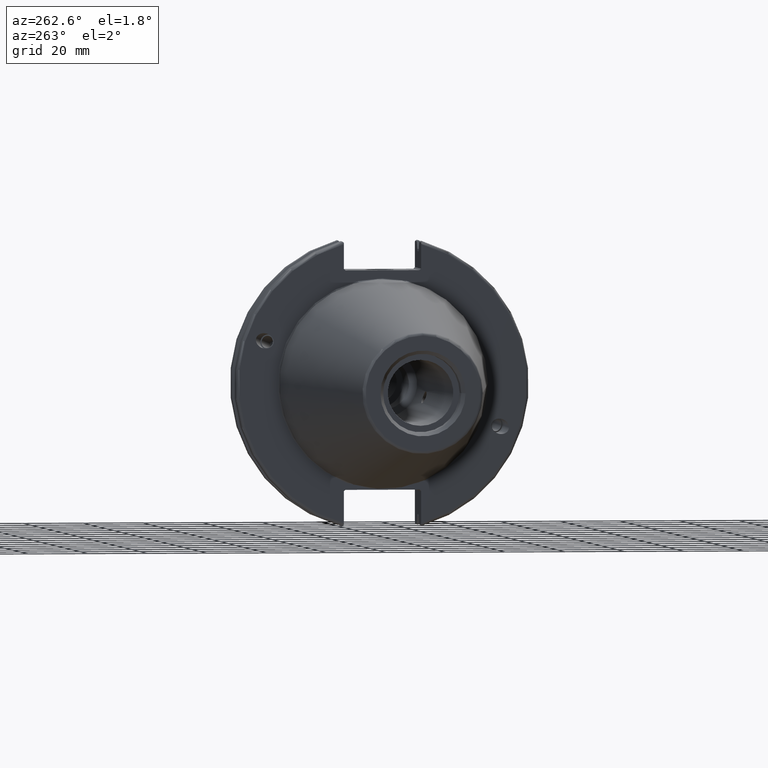
[diagram: clean part render]
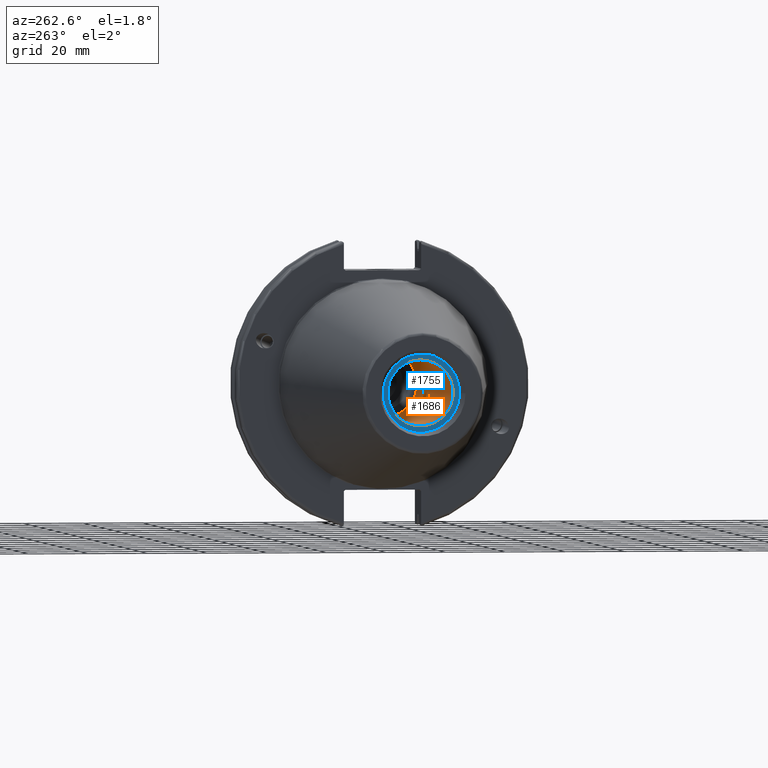
[diagram: same view with the hole feature highlighted: cylindrical wall and planar end face, labeled with their STEP entity ids]
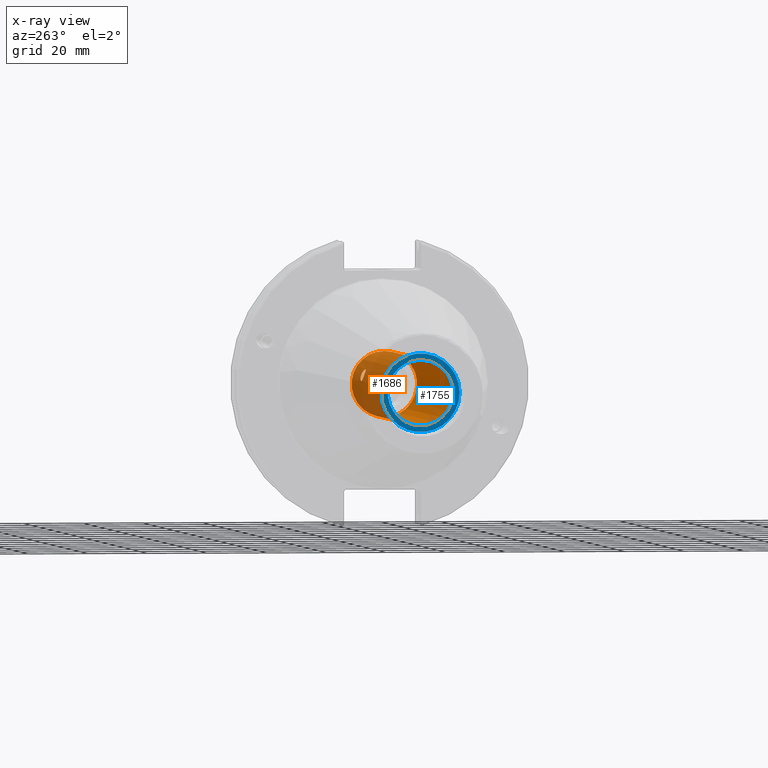
[diagram: x-ray of the same camera — body ghosted, the hole faces saturated]
A machine part, auxiliary view. The highlighted faces form one hole feature of diameter 21.971 mm: the cylindrical wall (entity #1686, orange) and its adjacent planar end face (entity #1755, blue) — they share a circular edge in the B-rep.
The next image is the same camera in x-ray (body ghosted, the hole faces saturated) — the bore reads through the body.
Wall:
#31=B_SPLINE_CURVE_WITH_KNOTS('',3,(#2753,#2754,#2755,#2756,#2757,#2758,
#2759,#2760,#2761,#2762,#2763,#2764,#2765,#2766,#2767,#2768,#2769,#2770,
#2771,#2772,#2773,#2774),.UNSPECIFIED.,.F.,.F.,(4,2,2,2,2,2,2,2,2,2,4),
(0.,0.263356262559381,0.379400792463201,0.415511189994392,0.451621587525582,
0.487731985056773,0.523842382587963,0.639886912491784,0.903243175051165,
1.03515170477571,1.03931269301749),.UNSPECIFIED.);
#32=B_SPLINE_CURVE_WITH_KNOTS('',3,(#2775,#2776,#2777,#2778,#2779,#2780,
#2781,#2782,#2783,#2784,#2785,#2786,#2787,#2788,#2789,#2790),
 .UNSPECIFIED.,.F.,.F.,(4,2,2,2,2,2,2,4),(1.03931269301749,1.16706023450025,
1.24262540104365,1.31819056758706,1.39375573413046,1.46932090067387,1.60122943039841,
1.73313796012295),.UNSPECIFIED.);
#33=B_SPLINE_CURVE_WITH_KNOTS('',3,(#2793,#2794,#2795,#2796,#2797,#2798,
#2799,#2800,#2801,#2802,#2803,#2804,#2805,#2806,#2807,#2808,#2809,#2810,
#2811,#2812,#2813,#2814,#2815,#2816,#2817,#2818),.UNSPECIFIED.,.F.,.F.,
(4,2,2,2,2,2,2,2,2,2,2,2,4),(0.,0.149948388349609,0.299896776699218,0.379142260611342,
0.418765002567404,0.458387744523466,0.498010486479528,0.53763322843559,
0.616878712347714,0.766827100697323,0.916775489046932,1.03646232228008,
1.05214614628718),.UNSPECIFIED.);
#34=B_SPLINE_CURVE_WITH_KNOTS('',3,(#2819,#2820,#2821,#2822,#2823,#2824,
#2825,#2826,#2827,#2828,#2829,#2830,#2831,#2832,#2833,#2834,#2835,#2836),
 .UNSPECIFIED.,.F.,.F.,(4,2,2,2,2,2,2,2,4),(1.05214614628718,1.15614915551322,
1.24410107663138,1.28807703719046,1.33205299774954,1.40761816429294,1.48318333083635,
1.61509186056089,1.74700039028543),.UNSPECIFIED.);
#110=FACE_BOUND('',#296,.T.);
#111=FACE_BOUND('',#297,.T.);
#189=FACE_OUTER_BOUND('',#295,.T.);
#295=EDGE_LOOP('',(#1269,#1270,#1271,#1272));
#296=EDGE_LOOP('',(#1273,#1274));
#297=EDGE_LOOP('',(#1275,#1276));
#404=LINE('',#2750,#498);
#498=VECTOR('',#2229,10.9855);
#629=CIRCLE('',#1873,10.9855);
#630=CIRCLE('',#1875,10.9855);
#739=VERTEX_POINT('',#2744);
#740=VERTEX_POINT('',#2748);
#741=VERTEX_POINT('',#2751);
#742=VERTEX_POINT('',#2752);
#743=VERTEX_POINT('',#2791);
#744=VERTEX_POINT('',#2792);
#935=EDGE_CURVE('',#739,#739,#629,.T.);
#937=EDGE_CURVE('',#740,#740,#630,.T.);
#938=EDGE_CURVE('',#740,#739,#404,.T.);
#939=EDGE_CURVE('',#741,#742,#31,.T.);
#940=EDGE_CURVE('',#742,#741,#32,.T.);
#941=EDGE_CURVE('',#743,#744,#33,.T.);
#942=EDGE_CURVE('',#744,#743,#34,.T.);
#1269=ORIENTED_EDGE('',*,*,#937,.F.);
#1270=ORIENTED_EDGE('',*,*,#938,.T.);
#1271=ORIENTED_EDGE('',*,*,#935,.F.);
#1272=ORIENTED_EDGE('',*,*,#938,.F.);
#1273=ORIENTED_EDGE('',*,*,#939,.F.);
#1274=ORIENTED_EDGE('',*,*,#940,.F.);
#1275=ORIENTED_EDGE('',*,*,#941,.F.);
#1276=ORIENTED_EDGE('',*,*,#942,.F.);
#1633=CYLINDRICAL_SURFACE('',#1874,10.9855);
#1686=ADVANCED_FACE('',(#189,#110,#111),#1633,.F.);
#1873=AXIS2_PLACEMENT_3D('',#2745,#2222,#2223);
#1874=AXIS2_PLACEMENT_3D('',#2747,#2225,#2226);
#1875=AXIS2_PLACEMENT_3D('',#2749,#2227,#2228);
#2222=DIRECTION('center_axis',(-1.,0.,0.));
#2223=DIRECTION('ref_axis',(0.,0.,1.));
#2225=DIRECTION('center_axis',(-1.,0.,0.));
#2226=DIRECTION('ref_axis',(0.,0.,1.));
#2227=DIRECTION('center_axis',(1.,0.,0.));
#2228=DIRECTION('ref_axis',(0.,0.,1.));
#2229=DIRECTION('',(1.,0.,0.));
#2744=CARTESIAN_POINT('',(-1.6,-1.34533574120333E-15,-10.9855));
#2745=CARTESIAN_POINT('Origin',(-1.6,0.,0.));
#2747=CARTESIAN_POINT('Origin',(-51.6,0.,0.));
#2748=CARTESIAN_POINT('',(-95.25,1.34533574120333E-15,-10.9855));
#2749=CARTESIAN_POINT('Origin',(-95.25,0.,0.));
#2750=CARTESIAN_POINT('',(-51.6,-1.34533574120333E-15,-10.9855));
#2751=CARTESIAN_POINT('',(-25.5235170780255,-10.8455693307922,-1.74780895437107));
#2752=CARTESIAN_POINT('',(-26.9402421845153,-9.52319068260596,-5.47631714500936));
#2753=CARTESIAN_POINT('Ctrl Pts',(-25.5235170780255,-10.8455693307922,-1.74780895437107));
#2754=CARTESIAN_POINT('Ctrl Pts',(-24.6456628694942,-10.8455693307922,-1.74780895437107));
#2755=CARTESIAN_POINT('Ctrl Pts',(-23.6129759087193,-10.8179461434476,-1.95396165756499));
#2756=CARTESIAN_POINT('Ctrl Pts',(-22.4915777455551,-10.6928496109914,-2.5251056642302));
#2757=CARTESIAN_POINT('Ctrl Pts',(-22.1135113311296,-10.6306843167928,-2.78714113742084));
#2758=CARTESIAN_POINT('Ctrl Pts',(-21.8167348410648,-10.5150655626391,-3.18184445243805));
#2759=CARTESIAN_POINT('Ctrl Pts',(-21.751306341111,-10.481522737279,-3.29145252394975));
#2760=CARTESIAN_POINT('Ctrl Pts',(-21.6624430214445,-10.4061442836875,-3.52251896272565));
#2761=CARTESIAN_POINT('Ctrl Pts',(-21.6395918285545,-10.3641615634408,-3.64415337085845));
#2762=CARTESIAN_POINT('Ctrl Pts',(-21.6395918285545,-10.2818250078464,-3.87037119814982));
#2763=CARTESIAN_POINT('Ctrl Pts',(-21.6624430214445,-10.2358005469391,-3.99053453298755));
#2764=CARTESIAN_POINT('Ctrl Pts',(-21.751306341111,-10.1450171485842,-4.21599403040906));
#2765=CARTESIAN_POINT('Ctrl Pts',(-21.8167348410648,-10.1002577332685,-4.32151959704693));
#2766=CARTESIAN_POINT('Ctrl Pts',(-22.1135113311296,-9.93511643701296,-4.69819818081389));
#2767=CARTESIAN_POINT('Ctrl Pts',(-22.4915777455551,-9.81430465972338,-4.93888807981503));
#2768=CARTESIAN_POINT('Ctrl Pts',(-23.6129759087192,-9.54300987243374,-5.45682027341917));
#2769=CARTESIAN_POINT('Ctrl Pts',(-24.6456628694942,-9.43165805828388,-5.63249824870001));
#2770=CARTESIAN_POINT('Ctrl Pts',(-25.9632121771073,-9.43165805828388,-5.63249824870001));
#2771=CARTESIAN_POINT('Ctrl Pts',(-26.442594873787,-9.45709886034953,-5.59098046114587));
#2772=CARTESIAN_POINT('Ctrl Pts',(-26.9116304726285,-9.51928731326139,-5.48310074803666));
#2773=CARTESIAN_POINT('Ctrl Pts',(-26.9259493735239,-9.52122233304375,-5.47974006002988));
#2774=CARTESIAN_POINT('Ctrl Pts',(-26.9402421845154,-9.52319068260616,-5.47631714500933));
#2775=CARTESIAN_POINT('Ctrl Pts',(-26.9402421845154,-9.52319068260616,-5.47631714500933));
#2776=CARTESIAN_POINT('Ctrl Pts',(-27.3790493521749,-9.58362147518866,-5.37122937422736));
#2777=CARTESIAN_POINT('Ctrl Pts',(-27.7931087671317,-9.67645097428544,-5.20740068871255));
#2778=CARTESIAN_POINT('Ctrl Pts',(-28.3252856471715,-9.8663789405842,-4.83322872168078));
#2779=CARTESIAN_POINT('Ctrl Pts',(-28.5137854586409,-9.9541751093878,-4.65275835687149));
#2780=CARTESIAN_POINT('Ctrl Pts',(-28.7750183392881,-10.1396107127252,-4.23344512577805));
#2781=CARTESIAN_POINT('Ctrl Pts',(-28.8470008816521,-10.2368439220049,-3.99395571580179));
#2782=CARTESIAN_POINT('Ctrl Pts',(-28.8470008816521,-10.4091426492823,-3.52056885320648));
#2783=CARTESIAN_POINT('Ctrl Pts',(-28.7750183392881,-10.4885985150108,-3.27460901933327));
#2784=CARTESIAN_POINT('Ctrl Pts',(-28.5137854586409,-10.6160759510423,-2.83420074050785));
#2785=CARTESIAN_POINT('Ctrl Pts',(-28.3252856471715,-10.6648242982181,-2.63951813091313));
#2786=CARTESIAN_POINT('Ctrl Pts',(-27.7822172603396,-10.761788810905,-2.2224376752005));
#2787=CARTESIAN_POINT('Ctrl Pts',(-27.3519799757018,-10.7962891973262,-2.03369662215047));
#2788=CARTESIAN_POINT('Ctrl Pts',(-26.442594873787,-10.8383709964217,-1.79596645716579));
#2789=CARTESIAN_POINT('Ctrl Pts',(-25.9632121771073,-10.8455693307922,-1.74780895437107));
#2790=CARTESIAN_POINT('Ctrl Pts',(-25.5235170780255,-10.8455693307922,-1.74780895437107));
#2791=CARTESIAN_POINT('',(-25.5235170780255,10.8455693307922,1.74780895437107));
#2792=CARTESIAN_POINT('',(-26.9402421846392,9.52319068258424,5.47631714497969));
#2793=CARTESIAN_POINT('Ctrl Pts',(-25.5235170780255,10.8455693307922,1.74780895437107));
#2794=CARTESIAN_POINT('Ctrl Pts',(-25.0236891168601,10.8455693307922,1.74780895437107));
#2795=CARTESIAN_POINT('Ctrl Pts',(-24.4804797232463,10.8362225228904,1.80969227413891));
#2796=CARTESIAN_POINT('Ctrl Pts',(-23.4356208753768,10.7895095498502,2.07006974408344));
#2797=CARTESIAN_POINT('Ctrl Pts',(-22.9332191245712,10.7528177288589,2.26565691891493));
#2798=CARTESIAN_POINT('Ctrl Pts',(-22.294268750936,10.6562756759326,2.67319445320093));
#2799=CARTESIAN_POINT('Ctrl Pts',(-22.071505171321,10.6108913560354,2.85262878398763));
#2800=CARTESIAN_POINT('Ctrl Pts',(-21.82574034595,10.5199797478263,3.16592179025479));
#2801=CARTESIAN_POINT('Ctrl Pts',(-21.7582972123282,10.485855821993,3.27767631247393));
#2802=CARTESIAN_POINT('Ctrl Pts',(-21.6652390563019,10.4099493040427,3.51129778048195));
#2803=CARTESIAN_POINT('Ctrl Pts',(-21.6395918285544,10.3681658719195,3.63315162373275));
#2804=CARTESIAN_POINT('Ctrl Pts',(-21.6395918285544,10.2778206993677,3.88137294527552));
#2805=CARTESIAN_POINT('Ctrl Pts',(-21.6652390563019,10.2315025247259,4.00157627722949));
#2806=CARTESIAN_POINT('Ctrl Pts',(-21.7582972123282,10.1394813060058,4.22933247382319));
#2807=CARTESIAN_POINT('Ctrl Pts',(-21.82574034595,10.0937873275589,4.33687584128211));
#2808=CARTESIAN_POINT('Ctrl Pts',(-22.071505171321,9.96204879721257,4.63530906313461));
#2809=CARTESIAN_POINT('Ctrl Pts',(-22.294268750936,9.88147703869243,4.80193621364248));
#2810=CARTESIAN_POINT('Ctrl Pts',(-22.9332191245712,9.69347246434268,5.17618411257941));
#2811=CARTESIAN_POINT('Ctrl Pts',(-23.4356208753768,9.5958590173257,5.34959762891445));
#2812=CARTESIAN_POINT('Ctrl Pts',(-24.4804797232463,9.46427581922285,5.57908486316072));
#2813=CARTESIAN_POINT('Ctrl Pts',(-25.0236891168601,9.43165805828388,5.63249824870001));
#2814=CARTESIAN_POINT('Ctrl Pts',(-25.9224731888027,9.43165805828388,5.63249824870002));
#2815=CARTESIAN_POINT('Ctrl Pts',(-26.3581770333323,9.4525783272784,5.59819330199645));
#2816=CARTESIAN_POINT('Ctrl Pts',(-26.831537998593,9.50875070268244,5.50136697212495));
#2817=CARTESIAN_POINT('Ctrl Pts',(-26.8860926014362,9.51573341557615,5.48928516238634));
#2818=CARTESIAN_POINT('Ctrl Pts',(-26.9402421846657,9.52319068262686,5.47631714497334));
#2819=CARTESIAN_POINT('Ctrl Pts',(-26.9402421846657,9.52319068262686,5.47631714497334));
#2820=CARTESIAN_POINT('Ctrl Pts',(-27.2993204044706,9.57264151894871,5.39032326783994));
#2821=CARTESIAN_POINT('Ctrl Pts',(-27.6403400086693,9.64363837878105,5.26470916228335));
#2822=CARTESIAN_POINT('Ctrl Pts',(-28.1767635101751,9.8054800150361,4.95573531682362));
#2823=CARTESIAN_POINT('Ctrl Pts',(-28.4153488811481,9.90166859912615,4.76468807758572));
#2824=CARTESIAN_POINT('Ctrl Pts',(-28.6668674306608,10.0583934187964,4.41881809432326));
#2825=CARTESIAN_POINT('Ctrl Pts',(-28.7336624524962,10.1126027845179,4.29378278969607));
#2826=CARTESIAN_POINT('Ctrl Pts',(-28.8237105288222,10.2198411779741,4.03187416735077));
#2827=CARTESIAN_POINT('Ctrl Pts',(-28.8470008816521,10.2728577378659,3.89500856993527));
#2828=CARTESIAN_POINT('Ctrl Pts',(-28.8470008816521,10.4091426492823,3.52056885320648));
#2829=CARTESIAN_POINT('Ctrl Pts',(-28.7750183392881,10.4885985150108,3.27460901933326));
#2830=CARTESIAN_POINT('Ctrl Pts',(-28.5137854586409,10.6160759510423,2.83420074050784));
#2831=CARTESIAN_POINT('Ctrl Pts',(-28.3252856471715,10.6648242982181,2.63951813091313));
#2832=CARTESIAN_POINT('Ctrl Pts',(-27.7822172603396,10.761788810905,2.2224376752005));
#2833=CARTESIAN_POINT('Ctrl Pts',(-27.3519799757018,10.7962891973262,2.03369662215048));
#2834=CARTESIAN_POINT('Ctrl Pts',(-26.442594873787,10.8383709964217,1.7959664571658));
#2835=CARTESIAN_POINT('Ctrl Pts',(-25.9632121771073,10.8455693307922,1.74780895437107));
#2836=CARTESIAN_POINT('Ctrl Pts',(-25.5235170780255,10.8455693307922,1.74780895437107));
End face:
#123=FACE_BOUND('',#378,.T.);
#158=PLANE('',#2007);
#258=FACE_OUTER_BOUND('',#377,.T.);
#377=EDGE_LOOP('',(#1622));
#378=EDGE_LOOP('',(#1623));
#630=CIRCLE('',#1875,10.9855);
#674=CIRCLE('',#2003,13.1);
#740=VERTEX_POINT('',#2748);
#845=VERTEX_POINT('',#3289);
#937=EDGE_CURVE('',#740,#740,#630,.T.);
#1101=EDGE_CURVE('',#845,#845,#674,.T.);
#1622=ORIENTED_EDGE('',*,*,#1101,.F.);
#1623=ORIENTED_EDGE('',*,*,#937,.T.);
#1755=ADVANCED_FACE('',(#258,#123),#158,.T.);
#1875=AXIS2_PLACEMENT_3D('',#2749,#2227,#2228);
#2003=AXIS2_PLACEMENT_3D('',#3290,#2549,#2550);
#2007=AXIS2_PLACEMENT_3D('',#3298,#2560,#2561);
#2227=DIRECTION('center_axis',(1.,0.,0.));
#2228=DIRECTION('ref_axis',(0.,0.,1.));
#2549=DIRECTION('center_axis',(1.,0.,0.));
#2550=DIRECTION('ref_axis',(0.,0.,-1.));
#2560=DIRECTION('center_axis',(-1.,0.,0.));
#2561=DIRECTION('ref_axis',(0.,0.,1.));
#2748=CARTESIAN_POINT('',(-95.25,1.34533574120333E-15,-10.9855));
#2749=CARTESIAN_POINT('Origin',(-95.25,0.,0.));
#3289=CARTESIAN_POINT('',(-95.25,-13.1,-1.60428730688303E-15));
#3290=CARTESIAN_POINT('Origin',(-95.25,0.,0.));
#3298=CARTESIAN_POINT('Origin',(-95.25,13.1,0.));